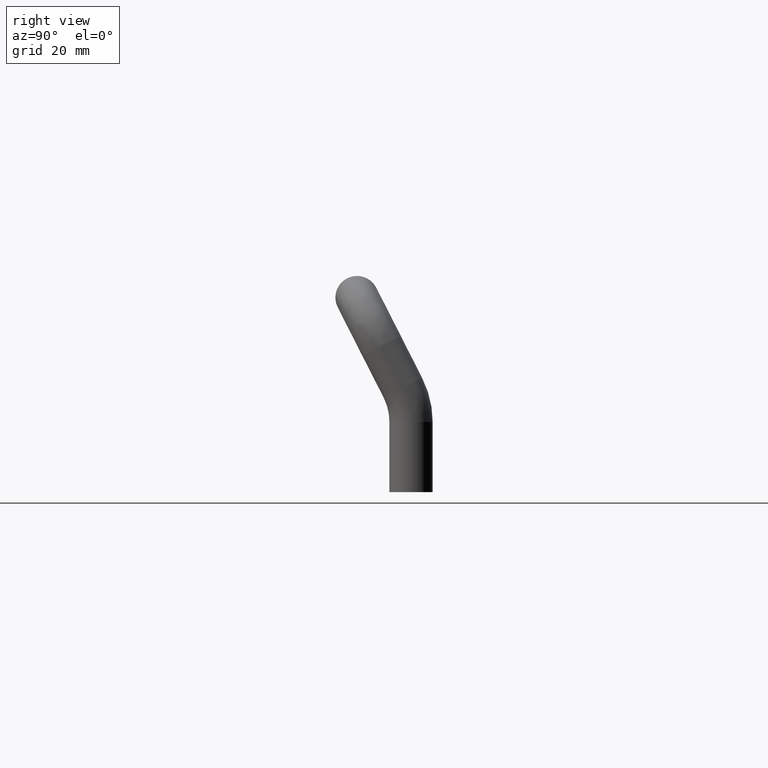
[diagram: clean part render]
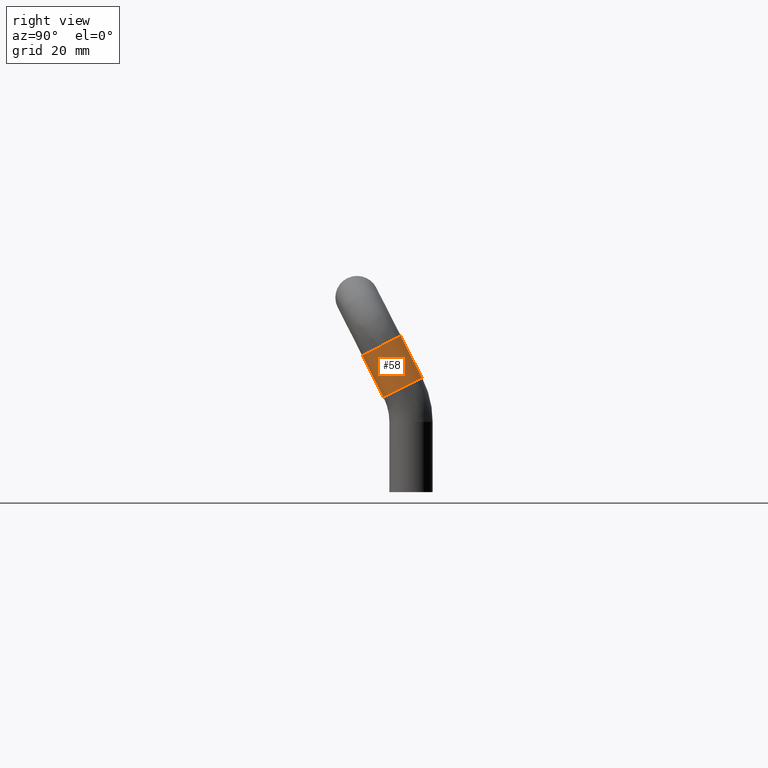
[diagram: same view with one face highlighted and labeled with its STEP entity id]
A machine part, right view. The second image highlights one B-rep face of the part: STEP entity #58.
In plain terms, the highlighted cylindrical surface (edge-blend (fillet) strip) has radius 4 mm, axis along (-0, -0.4537, 0.8911).
Its self-contained STEP definition (entity closure, byte-faithful):
#58=ADVANCED_FACE('',(#253),#252,.T.);
#252=CYLINDRICAL_SURFACE('',#613,4.00000000000E+00);
#253=FACE_OUTER_BOUND('',#614,.T.);
#610=CARTESIAN_POINT('',(6.00000000001E+01,6.50663255654E+00,-8.77980654742E+00));
#611=DIRECTION('',(-1.65436122511E-18,-4.53713455470E-01,8.91147631050E-01));
#612=DIRECTION('',(2.96662440851E-02,-8.90755401438E-01,-4.53513758084E-01));
#613=AXIS2_PLACEMENT_3D('',#610,#611,#612);
#614=EDGE_LOOP('',(#778,#779,#780,#781,#782,#783,#784));
#778=ORIENTED_EDGE('',*,*,#875,.F.);
#779=ORIENTED_EDGE('',*,*,#847,.F.);
#780=ORIENTED_EDGE('',*,*,#852,.F.);
#781=ORIENTED_EDGE('',*,*,#896,.F.);
#782=ORIENTED_EDGE('',*,*,#889,.T.);
#783=ORIENTED_EDGE('',*,*,#887,.T.);
#784=ORIENTED_EDGE('',*,*,#897,.T.);
#847=EDGE_CURVE('',#957,#942,#964,.T.);
#852=EDGE_CURVE('',#991,#957,#998,.T.);
#875=EDGE_CURVE('',#942,#1154,#1155,.T.);
#887=EDGE_CURVE('',#1236,#1229,#1237,.T.);
#889=EDGE_CURVE('',#1249,#1236,#1250,.T.);
#896=EDGE_CURVE('',#1249,#991,#1292,.T.);
#897=EDGE_CURVE('',#1229,#1154,#1298,.T.);
#942=VERTEX_POINT('',#1426);
#957=VERTEX_POINT('',#1436);
#964=LINE('',#1441,#1442);
#991=VERTEX_POINT('',#1459);
#998=CIRCLE('',#1467,4.00000000000E+00);
#1154=VERTEX_POINT('',#1570);
#1155=CIRCLE('',#1574,4.00000000000E+00);
#1229=VERTEX_POINT('',#1620);
#1236=VERTEX_POINT('',#1625);
#1237=CIRCLE('',#1629,4.00000000000E+00);
#1249=VERTEX_POINT('',#1633);
#1250=CIRCLE('',#1637,4.00000000000E+00);
#1292=(BOUNDED_CURVE() B_SPLINE_CURVE(1,(#1654,#1655),.UNSPECIFIED.,.F.,.F.) B_SPLINE_CURVE_WITH_KNOTS((2,2),(8.33333343261E-02,9.16666664274E-01),.UNSPECIFIED.) CURVE() GEOMETRIC_REPRESENTATION_ITEM() RATIONAL_B_SPLINE_CURVE((1.00000000000E+00,1.00000000000E+00)) REPRESENTATION_ITEM('') );
#1298=(BOUNDED_CURVE() B_SPLINE_CURVE(1,(#1656,#1657),.UNSPECIFIED.,.F.,.F.) B_SPLINE_CURVE_WITH_KNOTS((2,2),(8.33333333333E-02,7.24688475938E-01),.UNSPECIFIED.) CURVE() GEOMETRIC_REPRESENTATION_ITEM() RATIONAL_B_SPLINE_CURVE((7.50000000000E-01,7.50000000000E-01)) REPRESENTATION_ITEM('') );
#1426=CARTESIAN_POINT('',(6.00000000001E+01,9.00915198987E+00,-4.87891775082E+00));
#1436=CARTESIAN_POINT('',(6.00000000001E+01,8.10172507885E+00,-3.09662248855E+00));
#1441=CARTESIAN_POINT('',(6.00000000001E+01,8.10172507885E+00,-3.09662248855E+00));
#1442=VECTOR('',#1443,2.00000000019E+00);
#1443=DIRECTION('',(0.00000000000E+00,4.53713455467E-01,-8.91147631051E-01));
#1459=CARTESIAN_POINT('',(6.01186649766E+01,9.74112948915E-01,-6.72553134274E+00));
#1464=CARTESIAN_POINT('',(6.00000000001E+01,4.53713455466E+00,-4.91147631041E+00));
#1465=DIRECTION('',(-9.83834228215E-17,-4.53713455470E-01,8.91147631050E-01));
#1466=DIRECTION('',(-0.00000000000E+00,8.91147631050E-01,4.53713455470E-01));
#1467=AXIS2_PLACEMENT_3D('',#1464,#1465,#1466);
#1570=CARTESIAN_POINT('',(5.98813130641E+01,9.00758249058E+00,-4.87971683608E+00));
#1571=CARTESIAN_POINT('',(6.00000000001E+01,5.44456146569E+00,-6.69377157268E+00));
#1572=DIRECTION('',(0.00000000000E+00,-4.53713455470E-01,8.91147631050E-01));
#1573=DIRECTION('',(-0.00000000000E+00,-8.91147631050E-01,-4.53713455470E-01));
#1574=AXIS2_PLACEMENT_3D('',#1571,#1572,#1573);
#1620=CARTESIAN_POINT('',(5.98813350238E+01,1.20390884404E+01,-1.08339565911E+01));
#1625=CARTESIAN_POINT('',(6.00000039150E+01,1.20406573589E+01,-1.08331578015E+01));
#1626=CARTESIAN_POINT('',(6.00000000001E+01,8.47606683469E+00,-1.26480116234E+01));
#1627=DIRECTION('',(8.67361737988E-18,-4.53713455470E-01,8.91147631050E-01));
#1628=DIRECTION('',(-2.96662440751E-02,8.90755401438E-01,4.53513758084E-01));
#1629=AXIS2_PLACEMENT_3D('',#1626,#1627,#1628);
#1633=CARTESIAN_POINT('',(6.01186649767E+01,4.91304522895E+00,-1.44620666557E+01));
#1634=CARTESIAN_POINT('',(6.00000000001E+01,8.47606683469E+00,-1.26480116234E+01));
#1635=DIRECTION('',(8.67361737988E-18,-4.53713455470E-01,8.91147631050E-01));
#1636=DIRECTION('',(-2.96662440751E-02,8.90755401438E-01,4.53513758084E-01));
#1637=AXIS2_PLACEMENT_3D('',#1634,#1635,#1636);
#1654=CARTESIAN_POINT('',(6.01186649764E+01,4.91304522426E+00,-1.44620666465E+01));
#1655=CARTESIAN_POINT('',(6.01186649764E+01,9.74112960218E-01,-6.72553136496E+00));
#1656=CARTESIAN_POINT('',(5.98813350238E+01,1.20390884404E+01,-1.08339565911E+01));
#1657=CARTESIAN_POINT('',(5.98813350238E+01,9.00758307144E+00,-4.87971654034E+00));